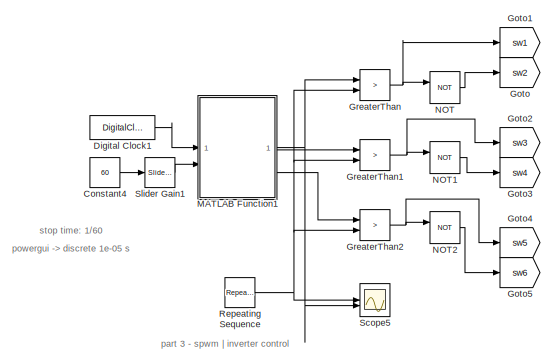
[diagram: root canvas - part 1/2, top left region]
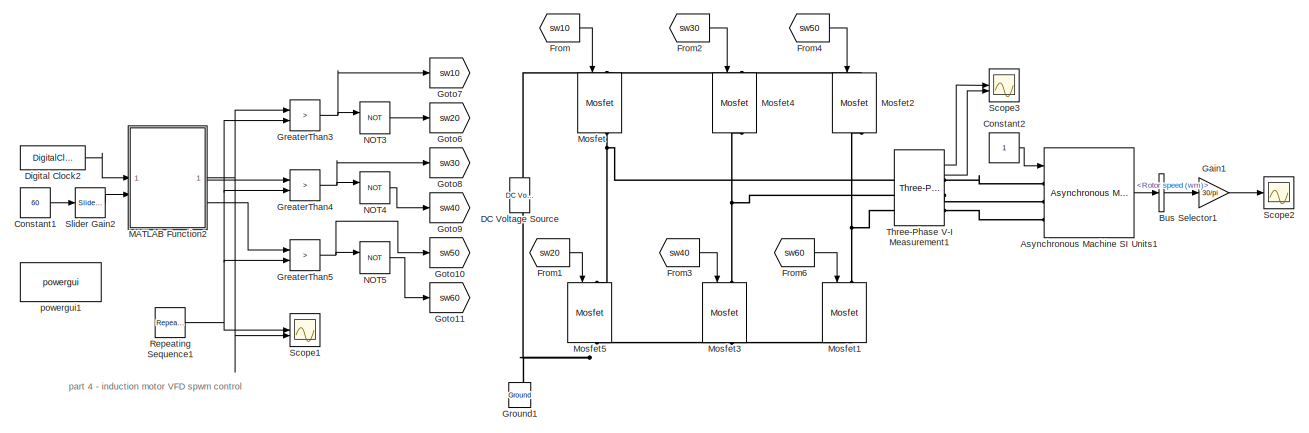
[diagram: root canvas - part 2/2, full width, bottom band]
MODEL slx_545762fe004a
KIND model
CONFIG AbsTol = auto
CONFIG EnableMultiTasking = off
CONFIG FixedStep = auto
CONFIG MaxStep = auto
CONFIG MinStep = auto
CONFIG RelTol = 1e-3
CONFIG SampleTimeConstraint = Unconstrained
CONFIG SolverName = VariableStepAuto
CONFIG StartTime = 0.0
CONFIG StopTime = 30
BLOCK [Reference] Asynchronous Machine SI Units1  REF=spsAsynchronousMachineSIUnitsLib/Asynchronous Machine
SI Units
  LibrarySourceBlock = sps_lib/Electrical Machines/Asynchronous Machine\nSI Units
  SourceBlock = spsAsynchronousMachineSIUnitsLib/Asynchronous Machine\nSI Units
  SourceType = Asynchronous Machine
BLOCK [BusSelector] Bus Selector1
  OutputSignals = Mechanical.Rotor speed (wm)
BLOCK [Constant] Constant1
  Value = 60
BLOCK [Constant] Constant2
BLOCK [Constant] Constant4
  Value = 60
BLOCK [Reference] DC Voltage Source  REF=spsDCVoltageSourceLib/DC Voltage Source
  LibrarySourceBlock = sps_lib/Sources/DC Voltage Source
  SourceBlock = spsDCVoltageSourceLib/DC Voltage Source
  SourceType = DC Voltage Source
BLOCK [DigitalClock] Digital Clock1
  SampleTime = 1e-5
BLOCK [DigitalClock] Digital Clock2
  SampleTime = 1e-5
BLOCK [From] From
  GotoTag = sw10
BLOCK [From] From1
  GotoTag = sw20
BLOCK [From] From2
  GotoTag = sw30
BLOCK [From] From3
  GotoTag = sw40
BLOCK [From] From4
  GotoTag = sw50
BLOCK [From] From6
  GotoTag = sw60
BLOCK [Gain] Gain1
  Gain = 30/pi
BLOCK [Goto] Goto
  GotoTag = sw2
BLOCK [Goto] Goto1
  GotoTag = sw1
BLOCK [Goto] Goto10
  GotoTag = sw50
BLOCK [Goto] Goto11
  GotoTag = sw60
BLOCK [Goto] Goto2
  GotoTag = sw3
BLOCK [Goto] Goto3
  GotoTag = sw4
BLOCK [Goto] Goto4
  GotoTag = sw5
BLOCK [Goto] Goto5
  GotoTag = sw6
BLOCK [Goto] Goto6
  GotoTag = sw20
BLOCK [Goto] Goto7
  GotoTag = sw10
BLOCK [Goto] Goto8
  GotoTag = sw30
BLOCK [Goto] Goto9
  GotoTag = sw40
BLOCK [RelationalOperator] GreaterThan
  InputSameDT = off
  Operator = >
  OutDataTypeStr = boolean
  RndMeth = Simplest
BLOCK [RelationalOperator] GreaterThan1
  InputSameDT = off
  Operator = >
  OutDataTypeStr = boolean
  RndMeth = Simplest
BLOCK [RelationalOperator] GreaterThan2
  InputSameDT = off
  Operator = >
  OutDataTypeStr = boolean
  RndMeth = Simplest
BLOCK [RelationalOperator] GreaterThan3
  InputSameDT = off
  Operator = >
  OutDataTypeStr = boolean
  RndMeth = Simplest
BLOCK [RelationalOperator] GreaterThan4
  InputSameDT = off
  Operator = >
  OutDataTypeStr = boolean
  RndMeth = Simplest
BLOCK [RelationalOperator] GreaterThan5
  InputSameDT = off
  Operator = >
  OutDataTypeStr = boolean
  RndMeth = Simplest
BLOCK [Reference] Ground1  REF=spsGroundLib/Ground
  LibrarySourceBlock = sps_lib/Utilities/Ground
  NameLocation = right
  SourceBlock = spsGroundLib/Ground
  SourceType = Ground
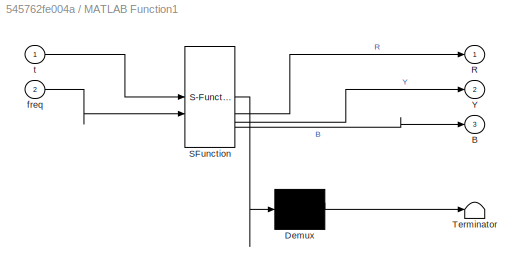
BLOCK [SubSystem] MATLAB Function1
  ErrorFcn = Stateflow.Translate.translate
  PermitHierarchicalResolution = ExplicitOnly
  SFBlockType = MATLAB Function
  TreatAsAtomicUnit = on
BLOCK [Demux] MATLAB Function1/ Demux 
  Outputs = 1
BLOCK [S-Function] MATLAB Function1/ SFunction 
  EnableBusSupport = on
  FunctionName = sf_sfun
  PortCounts = [2 4]
  SFcnIsStateOwnerBlock = off
  SFunctionDeploymentMode = off
  Tag = Stateflow S-Function 1
BLOCK [Terminator] MATLAB Function1/ Terminator 
BLOCK [Outport] MATLAB Function1/B
  Port = 3
BLOCK [Outport] MATLAB Function1/R
  VectorParamsAs1DForOutWhenUnconnected = off
BLOCK [Outport] MATLAB Function1/Y
  Port = 2
BLOCK [Inport] MATLAB Function1/freq
  Port = 2
BLOCK [Inport] MATLAB Function1/t
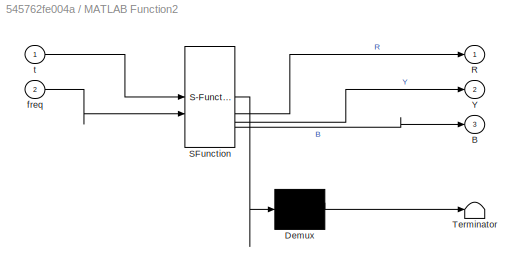
BLOCK [SubSystem] MATLAB Function2
  ErrorFcn = Stateflow.Translate.translate
  PermitHierarchicalResolution = ExplicitOnly
  SFBlockType = MATLAB Function
  TreatAsAtomicUnit = on
BLOCK [Demux] MATLAB Function2/ Demux 
  Outputs = 1
BLOCK [S-Function] MATLAB Function2/ SFunction 
  EnableBusSupport = on
  FunctionName = sf_sfun
  PortCounts = [2 4]
  SFcnIsStateOwnerBlock = off
  SFunctionDeploymentMode = off
  Tag = Stateflow S-Function 2
BLOCK [Terminator] MATLAB Function2/ Terminator 
BLOCK [Outport] MATLAB Function2/B
  Port = 3
BLOCK [Outport] MATLAB Function2/R
  VectorParamsAs1DForOutWhenUnconnected = off
BLOCK [Outport] MATLAB Function2/Y
  Port = 2
BLOCK [Inport] MATLAB Function2/freq
  Port = 2
BLOCK [Inport] MATLAB Function2/t
BLOCK [Reference] Mosfet  REF=spsMosfetLib/Mosfet
  LibrarySourceBlock = sps_lib/Power Electronics/Mosfet
  NameLocation = left
  SourceBlock = spsMosfetLib/Mosfet
  SourceType = Mosfet
BLOCK [Reference] Mosfet1  REF=spsMosfetLib/Mosfet
  LibrarySourceBlock = sps_lib/Power Electronics/Mosfet
  NameLocation = left
  SourceBlock = spsMosfetLib/Mosfet
  SourceType = Mosfet
BLOCK [Reference] Mosfet2  REF=spsMosfetLib/Mosfet
  LibrarySourceBlock = sps_lib/Power Electronics/Mosfet
  NameLocation = left
  SourceBlock = spsMosfetLib/Mosfet
  SourceType = Mosfet
BLOCK [Reference] Mosfet3  REF=spsMosfetLib/Mosfet
  LibrarySourceBlock = sps_lib/Power Electronics/Mosfet
  NameLocation = left
  SourceBlock = spsMosfetLib/Mosfet
  SourceType = Mosfet
BLOCK [Reference] Mosfet4  REF=spsMosfetLib/Mosfet
  LibrarySourceBlock = sps_lib/Power Electronics/Mosfet
  NameLocation = left
  SourceBlock = spsMosfetLib/Mosfet
  SourceType = Mosfet
BLOCK [Reference] Mosfet5  REF=spsMosfetLib/Mosfet
  LibrarySourceBlock = sps_lib/Power Electronics/Mosfet
  NameLocation = left
  SourceBlock = spsMosfetLib/Mosfet
  SourceType = Mosfet
BLOCK [Logic] NOT
  AllPortsSameDT = off
  IconShape = distinctive
  Operator = NOT
  OutDataTypeStr = boolean
BLOCK [Logic] NOT1
  AllPortsSameDT = off
  IconShape = distinctive
  Operator = NOT
  OutDataTypeStr = boolean
BLOCK [Logic] NOT2
  AllPortsSameDT = off
  IconShape = distinctive
  Operator = NOT
  OutDataTypeStr = boolean
BLOCK [Logic] NOT3
  AllPortsSameDT = off
  IconShape = distinctive
  Operator = NOT
  OutDataTypeStr = boolean
BLOCK [Logic] NOT4
  AllPortsSameDT = off
  IconShape = distinctive
  Operator = NOT
  OutDataTypeStr = boolean
BLOCK [Logic] NOT5
  AllPortsSameDT = off
  IconShape = distinctive
  Operator = NOT
  OutDataTypeStr = boolean
BLOCK [Reference] Repeating Sequence  REF=simulink/Sources/Repeating
Sequence
  SourceBlock = simulink/Sources/Repeating\nSequence
  SourceType = Repeating table
BLOCK [Reference] Repeating Sequence1  REF=simulink/Sources/Repeating
Sequence
  SourceBlock = simulink/Sources/Repeating\nSequence
  SourceType = Repeating table
BLOCK [Scope] Scope1
  Floating = off
  NumInputPorts = 2
  ScopeSpecificationString = Simulink.scopes.TimeScopeBlockCfg('CurrentConfiguration', extmgr.ConfigurationSet(extmgr.Configuration('Core','General UI',true),extmgr.Configuration('Core','Source UI',true),extmgr.Configuration('Sources','WiredSimulink',true),extmgr.Configuration('Visuals','Time Domain',true,'SerializedDisplays',{struct('MinYLimReal','-1.25','MaxYLimReal','1.25','YLabelReal','','MinYLimMag','0.00000','MaxYLimMag...<+1375ch>
BLOCK [Scope] Scope2
  Floating = off
  NumInputPorts = 1
  ScopeSpecificationString = Simulink.scopes.TimeScopeBlockCfg('CurrentConfiguration', extmgr.ConfigurationSet(extmgr.Configuration('Core','General UI',true),extmgr.Configuration('Core','Source UI',true),extmgr.Configuration('Sources','WiredSimulink',true,'DataLoggingVariableName','ScopeData2'),extmgr.Configuration('Visuals','Time Domain',true,'SerializedDisplays',{struct('MinYLimReal','-120.67731','MaxYLimReal','2019.53028',...<+1415ch>
BLOCK [Scope] Scope3
  Floating = off
  NumInputPorts = 2
  ScopeSpecificationString = Simulink.scopes.TimeScopeBlockCfg('CurrentConfiguration', extmgr.ConfigurationSet(extmgr.Configuration('Core','General UI',true),extmgr.Configuration('Core','Source UI',true),extmgr.Configuration('Sources','WiredSimulink',true,'DataLoggingVariableName','ScopeData3'),extmgr.Configuration('Visuals','Time Domain',true,'SerializedDisplays',{struct('MinYLimReal','0.9049','MaxYLimReal','0.9252','YLabelR...<+2225ch>
BLOCK [Scope] Scope5
  Floating = off
  NumInputPorts = 2
  ScopeSpecificationString = Simulink.scopes.TimeScopeBlockCfg('CurrentConfiguration', extmgr.ConfigurationSet(extmgr.Configuration('Core','General UI',true),extmgr.Configuration('Core','Source UI',true),extmgr.Configuration('Sources','WiredSimulink',true,'DataLoggingVariableName','ScopeData1'),extmgr.Configuration('Visuals','Time Domain',true,'SerializedDisplays',{struct('MinYLimReal','-1.25','MaxYLimReal','1.25','YLabelReal...<+1413ch>
BLOCK [Reference] Slider Gain1  REF=simulink/Math
Operations/Slider
Gain
  SourceBlock = simulink/Math\nOperations/Slider\nGain
  SourceType = Slider Gain
BLOCK [Reference] Slider Gain2  REF=simulink/Math
Operations/Slider
Gain
  SourceBlock = simulink/Math\nOperations/Slider\nGain
  SourceType = Slider Gain
BLOCK [Reference] Three-Phase V-I Measurement1  REF=spsThreePhaseVIMeasurementLib/Three-Phase
V-I Measurement
  LibrarySourceBlock = sps_lib/Sensors and Measurements/Three-Phase\nV-I Measurement
  SourceBlock = spsThreePhaseVIMeasurementLib/Three-Phase\nV-I Measurement
  SourceType = Three-Phase VI Measurement
BLOCK [Reference] powergui1  REF=sps_lib/powergui
  LibrarySourceBlock = sps_lib/powergui
  Priority = 1
  SourceBlock = sps_lib/powergui
  SourceType = PSB option menu block
ANNOTATION (root): part 3 - spwm | inverter control
ANNOTATION (root): part 4 - induction motor VFD spwm control
ANNOTATION (root): powergui -> discrete 1e-05 s
ANNOTATION (root): stop time: 1/60
LINE Asynchronous Machine SI Units1:1 -> Bus Selector1:1
LINE Bus Selector1:1 -> Gain1:1
LINE Constant1:1 -> Slider Gain2:1
LINE Constant2:1 -> Asynchronous Machine SI Units1:1
LINE Constant4:1 -> Slider Gain1:1
LINE Digital Clock1:1 -> MATLAB Function1:1
LINE Digital Clock2:1 -> MATLAB Function2:1
LINE From1:1 -> Mosfet5:1
LINE From2:1 -> Mosfet4:1
LINE From3:1 -> Mosfet3:1
LINE From4:1 -> Mosfet2:1
LINE From6:1 -> Mosfet1:1
LINE From:1 -> Mosfet:1
LINE Gain1:1 -> Scope2:1
NET GreaterThan1:1 -> Goto2:1, NOT1:1
NET GreaterThan2:1 -> Goto4:1, NOT2:1
NET GreaterThan3:1 -> Goto7:1, NOT3:1
NET GreaterThan4:1 -> Goto8:1, NOT4:1
NET GreaterThan5:1 -> Goto10:1, NOT5:1
NET GreaterThan:1 -> Goto1:1, NOT:1
NET MATLAB Function1:1 -> GreaterThan:1, Scope5:2
LINE MATLAB Function1:2 -> GreaterThan1:1
LINE MATLAB Function1:3 -> GreaterThan2:1
NET MATLAB Function2:1 -> GreaterThan3:1, Scope1:2
LINE MATLAB Function2:2 -> GreaterThan4:1
LINE MATLAB Function2:3 -> GreaterThan5:1
LINE NOT1:1 -> Goto3:1
LINE NOT2:1 -> Goto5:1
LINE NOT3:1 -> Goto6:1
LINE NOT4:1 -> Goto9:1
LINE NOT5:1 -> Goto11:1
LINE NOT:1 -> Goto:1
NET Repeating Sequence1:1 -> GreaterThan3:2, GreaterThan4:2, GreaterThan5:2, Scope1:1
NET Repeating Sequence:1 -> GreaterThan1:2, GreaterThan2:2, GreaterThan:2, Scope5:1
LINE Slider Gain1:1 -> MATLAB Function1:2
LINE Slider Gain2:1 -> MATLAB Function2:2
LINE Three-Phase V-I Measurement1:1 -> Scope3:1
LINE Three-Phase V-I Measurement1:2 -> Scope3:2
PLINE Asynchronous Machine SI Units1:LConn1 -- Three-Phase V-I Measurement1:RConn1
PLINE Asynchronous Machine SI Units1:LConn2 -- Three-Phase V-I Measurement1:RConn2
PLINE Asynchronous Machine SI Units1:LConn3 -- Three-Phase V-I Measurement1:RConn3
PNET net1: DC Voltage Source:LConn1 -- Ground1:LConn1 -- Mosfet1:RConn1 -- Mosfet3:RConn1 -- Mosfet5:RConn1
PNET net2: DC Voltage Source:RConn1 -- Mosfet2:LConn1 -- Mosfet4:LConn1 -- Mosfet:LConn1
PNET net3: Mosfet1:LConn1 -- Mosfet2:RConn1 -- Three-Phase V-I Measurement1:LConn3
PNET net4: Mosfet3:LConn1 -- Mosfet4:RConn1 -- Three-Phase V-I Measurement1:LConn2
PNET net5: Mosfet5:LConn1 -- Mosfet:RConn1 -- Three-Phase V-I Measurement1:LConn1
note: NET lines group one-source signal fan-out (src -> all destinations, sorted); 1:1 wires keep LINE; PNET lines group multi-terminal physical nets as a canonical sorted terminal list (undirected conserving connections); 2-terminal nets keep the pairwise PLINE form
CHART MATLAB Function1 states=1 transitions=1
  STATE_LABEL 'eML_blk_kernel()'
  STATE_LABEL 'SCRIPT:\nfunction [R,Y,B] = fcn(t,freq)\nomega=2*pi*freq;\nR=sin(omega*t)*freq/60;\nY=sin(omega*t+120*pi/180)*freq/60;\nB=sin(omega*t+240*pi/180)*freq/60;'
CHART MATLAB Function2 states=1 transitions=1
  STATE_LABEL 'eML_blk_kernel()'
  STATE_LABEL 'SCRIPT:\nfunction [R,Y,B] = fcn(t,freq)\nomega=2*pi*freq;\nR=sin(omega*t)*freq/60;\nB=sin(omega*t+120*pi/180)*freq/60;\nY=sin(omega*t+240*pi/180)*freq/60;'
CHART  states=0 transitions=0
CHART  states=0 transitions=0
